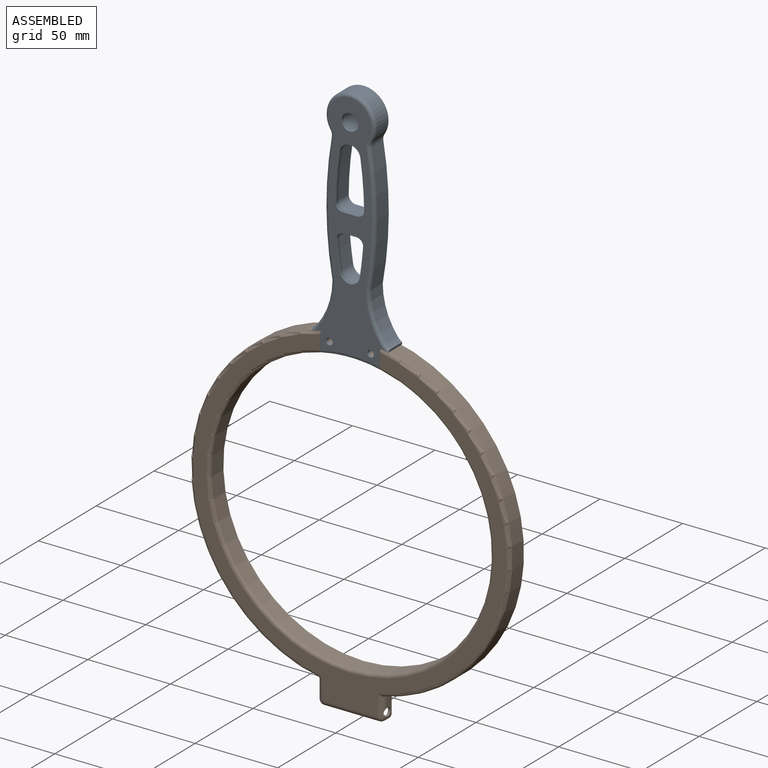
[diagram: assembled view]
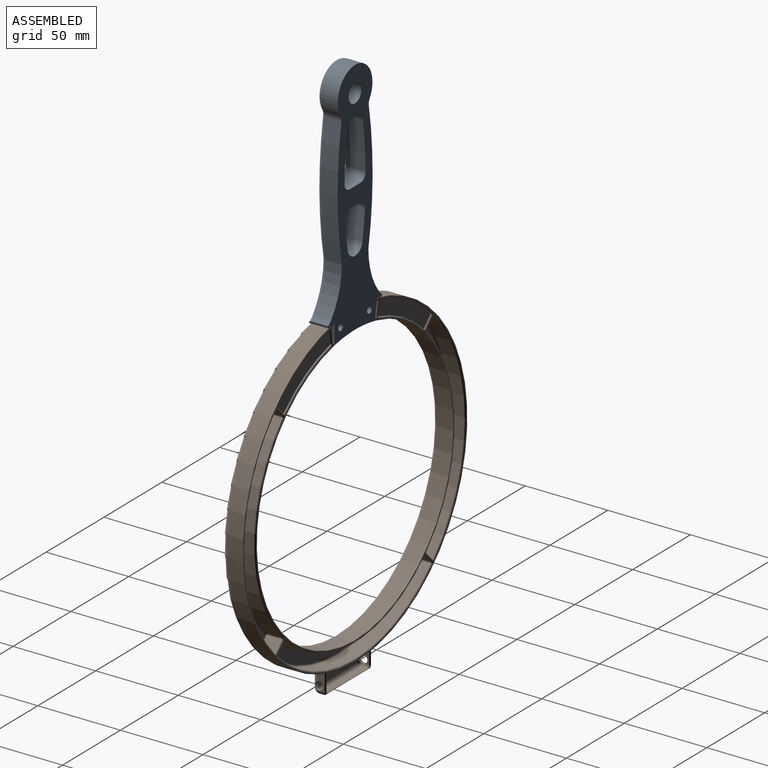
[diagram: assembled view, second angle]
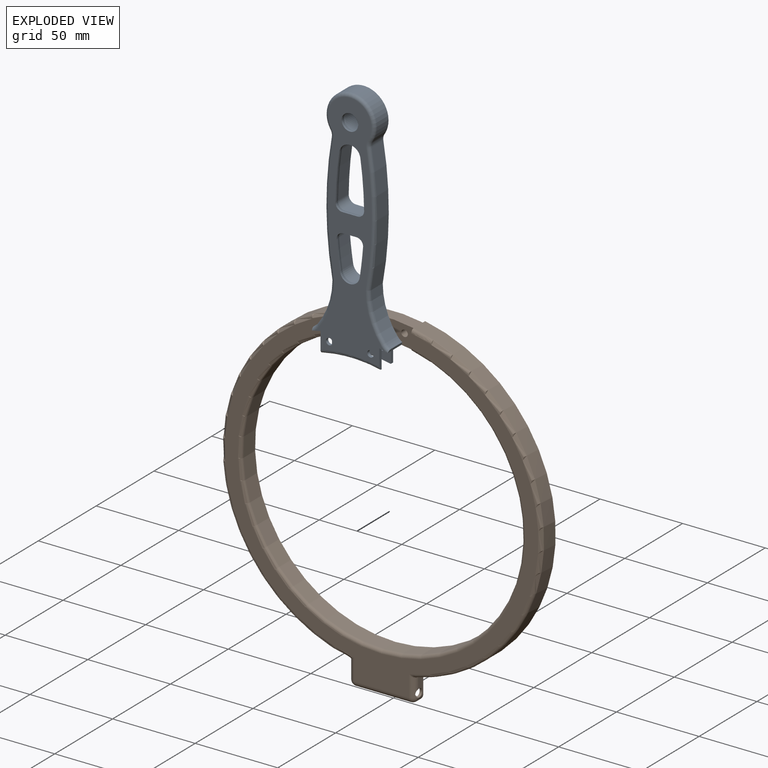
[diagram: exploded view]
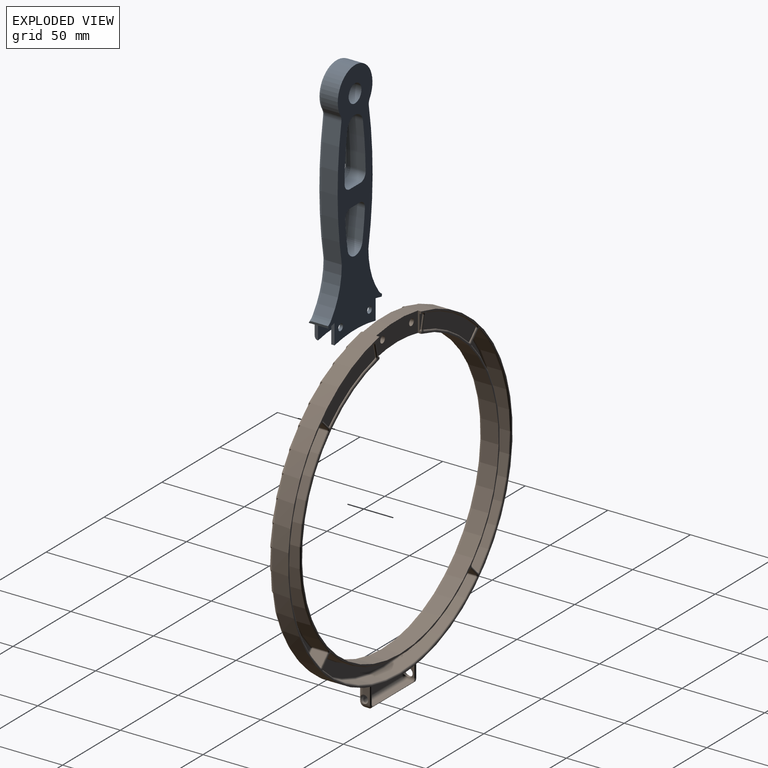
[diagram: exploded view, second angle]
ASSEMBLY  parts=2 mates=2
PART A: 87 faces, bbox 47.3x147.9x12 mm
  f0: cylinder r=97mm len=45.93mm, axis (0,0,1), area 413.1mm2, adj f1,f11,f12,f13,f27,f35,f75,f76
  f1: plane 11.92x1.46mm, normal (0.97,0.24,0), area 17.1mm2, adj f0,f2,f13,f35
  f2: cylinder r=10mm len=10mm, axis (0,0,1), area 38.8mm2, adj f1,f3,f13,f35
  f3: cylinder r=43.84mm len=26.55mm, axis (0,0,1), area 285.2mm2, adj f2,f4,f13,f34
  f4: cylinder r=223.59mm len=78.29mm, axis (0,0,1), area 786.9mm2, adj f3,f5,f13,f33
  f5: cylinder r=5mm len=10mm, axis (0,0,1), area 37.3mm2, adj f4,f6,f13,f32
  f6: cylinder r=15mm len=30mm, axis (0,0,1), area 643.7mm2, adj f5,f7,f13,f31
  f7: cylinder r=5mm len=10mm, axis (0,0,1), area 37.3mm2, adj f6,f8,f13,f30
  f8: cylinder r=223.59mm len=78.26mm, axis (0,0,1), area 786.7mm2, adj f7,f9,f13,f29
  f9: cylinder r=43.84mm len=26.58mm, axis (0,0,1), area 285.5mm2, adj f8,f10,f13,f28
  f10: cylinder r=10mm len=10mm, axis (0,0,1), area 38.7mm2, adj f9,f11,f13,f27
  f11: plane 11.92x1.46mm, normal (-0.97,0.24,0), area 17.1mm2, adj f0,f10,f13,f27
  f12: plane 142.67x42.64mm, normal (0,0,-1), area 2472mm2, adj f0,f14,f15,f16,f17,f18,f19,f20
  f13: plane 146.71x46.65mm, normal (0,0,1), area 3026.5mm2, adj f0,f1,f2,f3,f4,f5,f6,f7
  f14: cylinder r=5mm len=10mm, axis (0,0,1), area 31.4mm2, adj f12,f36
  f15: cylinder r=4mm len=4.31mm, axis (0,0,1), area 6.6mm2, adj f12,f16,f20,f45
  f16: plane 8x1mm, normal (0,1,0), area 8mm2, adj f12,f15,f17,f43
  f17: cylinder r=4mm len=4.31mm, axis (0,0,1), area 6.6mm2, adj f12,f16,f18,f44
  f18: cylinder r=217.09mm len=17.28mm, axis (0,0,1), area 17.4mm2, adj f12,f17,f19,f46
  f19: cylinder r=6.02mm len=11.9mm, axis (0,0,1), area 17mm2, adj f12,f18,f20,f48
  f20: cylinder r=217.09mm len=17.28mm, axis (0,0,1), area 17.4mm2, adj f12,f15,f19,f47
  f21: cylinder r=4mm len=4.06mm, axis (0,0,1), area 6.3mm2, adj f12,f22,f26,f39
  f22: cylinder r=217.09mm len=28.44mm, axis (0,0,1), area 28.6mm2, adj f12,f21,f23,f37
  f23: cylinder r=6.41mm len=12.68mm, axis (0,0,1), area 18.3mm2, adj f12,f22,f24,f38
  f24: cylinder r=217.09mm len=28.44mm, axis (0,0,1), area 28.6mm2, adj f12,f23,f25,f40
  f25: cylinder r=4mm len=4.06mm, axis (0,0,1), area 6.3mm2, adj f12,f24,f26,f42
  f26: plane 9.23x1mm, normal (0,-1,0), area 9.2mm2, adj f12,f21,f25,f41
  f27: torus R=12mm, axis (0,0,-1), area 13.2mm2, adj f0,f10,f11,f12,f28
  f28: torus R=45.84mm, axis (0,0,-1), area 91.4mm2, adj f9,f12,f27,f29
  f29: torus R=221.59mm, axis (0,0,-1), area 246.5mm2, adj f8,f12,f28,f30
  f30: torus R=7mm, axis (0,0,-1), area 13.4mm2, adj f7,f12,f29,f31
  f31: torus R=13mm, axis (0,0,-1), area 192.4mm2, adj f6,f12,f30,f32
  f32: torus R=7mm, axis (0,0,-1), area 13.4mm2, adj f5,f12,f31,f33
  f33: torus R=221.59mm, axis (0,0,-1), area 246.6mm2, adj f4,f12,f32,f34
  f34: torus R=45.84mm, axis (0,0,-1), area 91.3mm2, adj f3,f12,f33,f35
  f35: torus R=12mm, axis (0,0,-1), area 13.2mm2, adj f0,f1,f2,f12,f34
  f36: torus R=5.5mm, axis (0,0,-1), area 8.5mm2, adj f14,f74
  f37: torus R=217.59mm, axis (0,0,-1), area 7.7mm2, adj f22,f38,f39,f68
  f38: torus R=6.91mm, axis (0,0,-1), area 5mm2, adj f23,f37,f40,f69
  f39: torus R=4.5mm, axis (0,0,-1), area 1.7mm2, adj f21,f37,f41,f70
  f40: torus R=217.59mm, axis (0,0,-1), area 7.7mm2, adj f24,f38,f42,f71
  f41: cylinder r=0.5mm len=9.23mm, axis (1,0,0), area 2.5mm2, adj f26,f39,f42,f72
  f42: torus R=4.5mm, axis (0,0,-1), area 1.7mm2, adj f25,f40,f41,f73
  f43: cylinder r=0.5mm len=8mm, axis (-1,0,0), area 2.2mm2, adj f16,f44,f45,f60
  f44: torus R=4.5mm, axis (0,0,-1), area 1.8mm2, adj f17,f43,f46,f59
  f45: torus R=4.5mm, axis (0,0,-1), area 1.8mm2, adj f15,f43,f47,f58
  f46: torus R=217.59mm, axis (0,0,-1), area 4.7mm2, adj f18,f44,f48,f57
  f47: torus R=217.59mm, axis (0,0,-1), area 4.7mm2, adj f20,f45,f48,f56
  f48: torus R=6.52mm, axis (0,0,-1), area 4.6mm2, adj f19,f46,f47,f55
  f49: cylinder r=4.5mm len=9.2mm, axis (0,0,-1), area 68.2mm2, adj f13,f50,f54,f59
  f50: cylinder r=217.59mm len=17.32mm, axis (0,0,-1), area 160.4mm2, adj f13,f49,f51,f57
  f51: cylinder r=6.52mm len=12.89mm, axis (0,0,-1), area 169.6mm2, adj f13,f50,f52,f55
  f52: cylinder r=217.59mm len=17.32mm, axis (0,0,-1), area 160.4mm2, adj f13,f51,f53,f56
  f53: cylinder r=4.5mm len=9.2mm, axis (0,0,-1), area 68.2mm2, adj f13,f52,f54,f58
  f54: plane 9.2x8mm, normal (0,1,0), area 73.6mm2, adj f13,f49,f53,f60
  f55: cone r=6.52mm half-angle=15.5deg, axis (0,0,1), area 28.6mm2, adj f48,f51,f56,f57
  f56: cone r=217.59mm half-angle=15.5deg, axis (0,0,1), area 27.9mm2, adj f47,f52,f55,f58
  f57: cone r=217.59mm half-angle=15.5deg, axis (0,0,1), area 27.9mm2, adj f46,f50,f55,f59
  f58: cone r=4.5mm half-angle=15.5deg, axis (0,0,1), area 11.3mm2, adj f45,f53,f56,f60
  f59: cone r=4.5mm half-angle=15.5deg, axis (0,0,1), area 11.3mm2, adj f44,f49,f57,f60
  f60: plane 8x1.55mm, normal (0,0.96,0.27), area 12.8mm2, adj f43,f54,f58,f59
  f61: cylinder r=6.91mm len=13.66mm, axis (0,0,-1), area 181mm2, adj f13,f62,f67,f69
  f62: cylinder r=217.59mm len=28.51mm, axis (0,0,-1), area 263.2mm2, adj f13,f61,f63,f71
  f63: cylinder r=4.5mm len=9.2mm, axis (0,0,-1), area 65.6mm2, adj f13,f62,f64,f73
  f64: plane 9.23x9.2mm, normal (0,-1,0), area 84.9mm2, adj f13,f63,f65,f72
  f65: cylinder r=4.5mm len=9.2mm, axis (0,0,-1), area 65.6mm2, adj f13,f64,f67,f70
  f66: cylinder r=5.5mm len=11mm, axis (0,0,-1), area 317.8mm2, adj f13,f74
  f67: cylinder r=217.59mm len=28.51mm, axis (0,0,-1), area 263.2mm2, adj f13,f61,f65,f68
  f68: cone r=217.59mm half-angle=15.5deg, axis (0,0,1), area 45.8mm2, adj f37,f67,f69,f70
  f69: cone r=6.91mm half-angle=15.5deg, axis (0,0,1), area 30.6mm2, adj f38,f61,f68,f71
  f70: cone r=4.5mm half-angle=15.5deg, axis (0,0,1), area 10.9mm2, adj f39,f65,f68,f72
  f71: cone r=217.59mm half-angle=15.5deg, axis (0,0,1), area 45.8mm2, adj f40,f62,f69,f73
  f72: plane 9.23x1.55mm, normal (0,-0.96,0.27), area 14.8mm2, adj f41,f64,f70,f73
  f73: cone r=4.5mm half-angle=15.5deg, axis (0,0,1), area 10.9mm2, adj f42,f63,f71,f72
  f74: cone r=5.5mm half-angle=15.5deg, axis (0,0,1), area 53.3mm2, adj f36,f66
  f75: plane 12.24x2mm, normal (1,0,0), area 23.6mm2, adj f0,f12,f77,f82
  f76: plane 12.24x2mm, normal (-1,0,0), area 23.6mm2, adj f0,f12,f77,f82
  f77: plane 35.6x13.89mm, normal (0,0,1), area 404.9mm2, adj f0,f75,f76,f82,f85,f86
  f78: cylinder r=85mm len=35.6mm, axis (0,0,1), area 71.7mm2, adj f13,f79,f80,f81
  f79: plane 12.24x2mm, normal (-1,0,0), area 24.5mm2, adj f0,f13,f78,f81
  f80: plane 12.24x2mm, normal (1,0,0), area 24.5mm2, adj f0,f13,f78,f81
  f81: plane 35.6x13.89mm, normal (0,0,-1), area 404.9mm2, adj f0,f78,f79,f80,f83,f84
  f82: torus R=87mm, axis (0,0,-1), area 112.7mm2, adj f12,f75,f76,f77
  f83: cylinder r=2mm len=4mm, axis (0,0,1), area 25.1mm2, adj f13,f81
  f84: cylinder r=2mm len=4mm, axis (0,0,1), area 25.1mm2, adj f13,f81
  f85: cylinder r=2mm len=4mm, axis (0,0,1), area 25.1mm2, adj f12,f77
  f86: cylinder r=2mm len=4mm, axis (0,0,1), area 25.1mm2, adj f12,f77
PART B: 201 faces, bbox 210.2x12.2x213.3 mm
  f0: torus R=87mm, axis (0,1,0), area 1578.6mm2, adj f43,f45,f199,f200
  f1: torus R=95mm, axis (0,1,0), area 834.9mm2, adj f31,f45,f167,f199
  f2: cylinder r=2mm len=8mm, axis (0,1,0), area 100.5mm2, adj f197,f198
  f3: cylinder r=2mm len=8mm, axis (0,1,0), area 100.5mm2, adj f197,f198
  f4: cylinder r=95.5mm len=1.96mm, axis (0,1,0), area 0.4mm2, adj f7,f8,f136,f195
  f5: cylinder r=0.8mm len=0.9mm, axis (0,1,0), area 0.2mm2, adj f6,f8,f18,f195
  f6: torus R=1.6mm, axis (0,-1,0), area 2mm2, adj f5,f44,f123,f137,f195
  f7: torus R=96.3mm, axis (0,-1,0), area 2.6mm2, adj f4,f29,f143,f195
  f8: plane 9.19x2.59mm, normal (0,1,0), area 15.7mm2, adj f4,f5,f18,f136,f195
  f9: cylinder r=86.5mm len=39.12mm, axis (0,1,0), area 9mm2, adj f120,f128,f129,f194
  f10: cylinder r=95.5mm len=43.41mm, axis (0,1,0), area 10mm2, adj f127,f139,f140,f194
  f11: plane 5.23x5.23mm, normal (0.71,0,0.71), area 1.5mm2, adj f120,f126,f127,f194
  f12: plane 7.21x1.67mm, normal (-0.97,0,-0.22), area 1.5mm2, adj f128,f140,f141,f194
  f13: cylinder r=86.5mm len=39.12mm, axis (0,1,0), area 9mm2, adj f104,f113,f114,f193
  f14: plane 5.23x5.23mm, normal (-0.71,0,0.71), area 1.5mm2, adj f104,f115,f116,f193
  f15: plane 7.21x1.67mm, normal (0.97,0,-0.22), area 1.5mm2, adj f114,f130,f131,f193
  f16: cylinder r=95.5mm len=1.96mm, axis (0,1,0), area 0.4mm2, adj f146,f147,f192,f196
  f17: plane 7.21x1.67mm, normal (0.97,0,0.22), area 1.5mm2, adj f135,f145,f146,f192
  f18: plane 7.21x1.67mm, normal (-0.97,0,0.22), area 1.5mm2, adj f5,f8,f136,f137
  f19: cylinder r=2mm len=3.8mm, axis (0,-1,0), area 11.2mm2, adj f20,f32,f159,f164,f168,f191
  f20: plane 33x3.77mm, normal (0,0,1), area 124.4mm2, adj f19,f21,f157,f190
  f21: cylinder r=2mm len=3.8mm, axis (0,-1,0), area 11.2mm2, adj f20,f33,f156,f165,f181,f189
  f22: cylinder r=3.5mm len=3.8mm, axis (0,-1,0), area 16.2mm2, adj f23,f53,f155,f165,f166,f179
  f23: plane 33x1mm, normal (0,0,-1), area 33mm2, adj f22,f24,f153,f166
  f24: cylinder r=3.5mm len=3.8mm, axis (0,-1,0), area 16.2mm2, adj f23,f52,f152,f164,f166,f170
  f25: plane 12.53x0.79mm, normal (0,1,0), area 1.3mm2, adj f166,f168,f170,f171,f173,f174,f177
  f26: plane 12.53x0.79mm, normal (0,1,0), area 1.3mm2, adj f166,f179,f181,f182,f184,f186,f187
  f27: cylinder r=2mm len=8.32mm, axis (0,0,1), area 20mm2, adj f33,f54,f160,f165
  f28: cylinder r=2mm len=2mm, axis (0,0,1), area 2.1mm2, adj f54,f159,f164
  f29: plane 194x192.32mm, normal (0,1,0), area 405.7mm2, adj f7,f31,f87,f88,f97,f98,f109,f110
  f30: cylinder r=95.5mm len=43.41mm, axis (0,1,0), area 10mm2, adj f115,f131,f132,f193
  f31: cylinder r=97mm len=194mm, axis (0,1,0), area 5930.7mm2, adj f1,f29,f55,f149,f150,f162,f169,f172
  f32: plane 10.32x3.8mm, normal (1,0,0), area 27.6mm2, adj f19,f150,f161,f164,f171
  f33: plane 10.32x3.8mm, normal (-1,0,0), area 27.6mm2, adj f21,f27,f149,f165,f184
  f34: cylinder r=86.5mm len=120.14mm, axis (0,1,0), area 1181.9mm2, adj f78,f90,f103,f105
  f35: plane 131.72x31.88mm, normal (0,1,0), area 1034.8mm2, adj f77,f78,f101,f102
  f36: cylinder r=95.5mm len=132.83mm, axis (0,1,0), area 1307.3mm2, adj f100,f101,f118,f119
  f37: cylinder r=86.5mm len=120.14mm, axis (0,1,0), area 1181.9mm2, adj f61,f69,f81,f82
  f38: plane 131.72x31.88mm, normal (0,1,0), area 1034.8mm2, adj f61,f62,f83,f84
  f39: cylinder r=95.5mm len=132.83mm, axis (0,1,0), area 1307.3mm2, adj f84,f85,f108,f109
  f40: cylinder r=86.5mm len=120.14mm, axis (0,1,0), area 1181.9mm2, adj f57,f58,f68,f72
  f41: plane 131.72x31.88mm, normal (0,1,0), area 1034.8mm2, adj f57,f59,f66,f67
  f42: cylinder r=95.5mm len=132.83mm, axis (0,1,0), area 1307.3mm2, adj f66,f75,f88,f89
  f43: cylinder r=85mm len=170mm, axis (0,1,0), area 5268.2mm2, adj f0,f44,f195,f196,f197,f198
  f44: plane 171.4x170.36mm, normal (0,1,0), area 355.6mm2, adj f6,f43,f64,f72,f73,f80,f81,f94
  f45: plane 199.78x190mm, normal (0,-1,0), area 4679.6mm2, adj f0,f1,f55,f151,f153,f154,f199,f200
  f46: plane 8.9x5.23mm, normal (-0.71,0,0.71), area 65.9mm2, adj f77,f90,f99,f100
  f47: plane 8.9x5.23mm, normal (0.71,0,-0.71), area 65.9mm2, adj f67,f68,f89,f93
  f48: plane 8.9x5.23mm, normal (-0.71,0,-0.71), area 65.9mm2, adj f58,f59,f74,f75
  f49: plane 8.9x5.23mm, normal (0.71,0,0.71), area 65.9mm2, adj f62,f69,f85,f86
  f50: plane 8.9x5.23mm, normal (0.71,0,-0.71), area 65.9mm2, adj f82,f83,f107,f108
  f51: plane 8.9x5.23mm, normal (-0.71,0,-0.71), area 65.9mm2, adj f102,f103,f119,f121
  f52: plane 11.02x3.8mm, normal (-1,0,0), area 30.3mm2, adj f24,f151,f164,f172,f173
  f53: plane 11.02x3.8mm, normal (1,0,0), area 30.3mm2, adj f22,f154,f165,f182,f183
  f54: plane 33x8.88mm, normal (0,1,0), area 262.7mm2, adj f27,f28,f157,f158,f161,f162
  f55: torus R=95mm, axis (0,1,0), area 834.9mm2, adj f31,f45,f178,f200
  f56: sphere r=0.8mm, area 1mm2, adj f57,f58,f59
  f57: torus R=87.3mm, axis (0,-1,0), area 167.4mm2, adj f40,f41,f56,f63
  f58: cylinder r=0.8mm len=8.9mm, axis (0,1,0), area 11.1mm2, adj f40,f48,f56,f64
  f59: cylinder r=0.8mm len=5.8mm, axis (0.71,0,-0.71), area 9.3mm2, adj f41,f48,f56,f65
  f60: sphere r=0.8mm, area 0.7mm2, adj f61,f62,f69
  f61: torus R=87.3mm, axis (0,-1,0), area 167.4mm2, adj f37,f38,f60,f70
  f62: cylinder r=0.8mm len=5.8mm, axis (-0.71,0,0.71), area 9.3mm2, adj f38,f49,f60,f71
  f63: sphere r=0.8mm, area 1.2mm2, adj f57,f67,f68
  f64: torus R=1.6mm, axis (0,-1,0), area 2.1mm2, adj f44,f58,f72,f73,f74
  f65: sphere r=0.8mm, area 1mm2, adj f59,f66,f75
  f66: torus R=94.7mm, axis (0,-1,0), area 184mm2, adj f41,f42,f65,f79
  f67: cylinder r=0.8mm len=5.8mm, axis (0.71,0,0.71), area 9.3mm2, adj f41,f47,f63,f79
  f68: cylinder r=0.8mm len=8.9mm, axis (0,1,0), area 11.1mm2, adj f40,f47,f63,f80
  f69: cylinder r=0.8mm len=8.9mm, axis (0,1,0), area 11.1mm2, adj f37,f49,f60,f73
  f70: sphere r=0.8mm, area 0.7mm2, adj f61,f82,f83
  f71: sphere r=0.8mm, area 1mm2, adj f62,f84,f85
  f72: torus R=85.7mm, axis (0,-1,0), area 166.3mm2, adj f40,f44,f64,f80
  f73: torus R=1.6mm, axis (0,-1,0), area 2.1mm2, adj f44,f64,f69,f81,f86
  f74: cylinder r=0.8mm len=5.76mm, axis (0.71,0,-0.71), area 8.9mm2, adj f48,f64,f86,f87
  f75: cylinder r=0.8mm len=8.9mm, axis (0,1,0), area 11.3mm2, adj f42,f48,f65,f87
  f76: sphere r=0.8mm, area 0.9mm2, adj f77,f78,f90
  f77: cylinder r=0.8mm len=5.8mm, axis (-0.71,0,-0.71), area 9.3mm2, adj f35,f46,f76,f91
  f78: torus R=87.3mm, axis (0,-1,0), area 167.4mm2, adj f34,f35,f76,f92
  f79: sphere r=0.8mm, area 0.8mm2, adj f66,f67,f89
  f80: torus R=1.6mm, axis (0,-1,0), area 2.1mm2, adj f44,f68,f72,f93,f94
  f81: torus R=85.7mm, axis (0,-1,0), area 166.3mm2, adj f37,f44,f73,f95
  f82: cylinder r=0.8mm len=8.9mm, axis (0,1,0), area 11.1mm2, adj f37,f50,f70,f95
  f83: cylinder r=0.8mm len=5.8mm, axis (0.71,0,0.71), area 9.3mm2, adj f38,f50,f70,f96
  f84: torus R=94.7mm, axis (0,-1,0), area 184mm2, adj f38,f39,f71,f96
  f85: cylinder r=0.8mm len=8.9mm, axis (0,1,0), area 11.3mm2, adj f39,f49,f71,f97
  f86: cylinder r=0.8mm len=5.76mm, axis (-0.71,0,0.71), area 8.9mm2, adj f49,f73,f74,f97
  f87: torus R=1.6mm, axis (0,-1,0), area 2.2mm2, adj f29,f74,f75,f88,f97
  f88: torus R=96.3mm, axis (0,-1,0), area 185.1mm2, adj f29,f42,f87,f98
  f89: cylinder r=0.8mm len=8.9mm, axis (0,1,0), area 11.3mm2, adj f42,f47,f79,f98
  f90: cylinder r=0.8mm len=8.9mm, axis (0,1,0), area 11.1mm2, adj f34,f46,f76,f94
  f91: sphere r=0.8mm, area 1.3mm2, adj f77,f100,f101
  f92: sphere r=0.8mm, area 1mm2, adj f78,f102,f103
  f93: cylinder r=0.8mm len=5.76mm, axis (0.71,0,0.71), area 8.9mm2, adj f47,f80,f98,f99
  f94: torus R=1.6mm, axis (0,-1,0), area 2.1mm2, adj f44,f80,f90,f99,f105
  f95: torus R=1.6mm, axis (0,-1,0), area 2.1mm2, adj f44,f81,f82,f106,f107
  f96: sphere r=0.8mm, area 1.2mm2, adj f83,f84,f108
  f97: torus R=1.6mm, axis (0,-1,0), area 2.2mm2, adj f29,f85,f86,f87,f109
  f98: torus R=1.6mm, axis (0,-1,0), area 2.2mm2, adj f29,f88,f89,f93,f110
  f99: cylinder r=0.8mm len=5.76mm, axis (-0.71,0,-0.71), area 8.9mm2, adj f46,f93,f94,f110
  f100: cylinder r=0.8mm len=8.9mm, axis (0,1,0), area 11.3mm2, adj f36,f46,f91,f110
  f101: torus R=94.7mm, axis (0,-1,0), area 184mm2, adj f35,f36,f91,f111
  f102: cylinder r=0.8mm len=5.8mm, axis (0.71,0,-0.71), area 9.3mm2, adj f35,f51,f92,f111
  f103: cylinder r=0.8mm len=8.9mm, axis (0,1,0), area 11.1mm2, adj f34,f51,f92,f112
  f104: cylinder r=0.8mm len=1.12mm, axis (0,1,0), area 0.2mm2, adj f13,f14,f106,f193
  f105: torus R=85.7mm, axis (0,-1,0), area 166.3mm2, adj f34,f44,f94,f112
  f106: torus R=1.6mm, axis (0,-1,0), area 2.1mm2, adj f44,f95,f104,f113,f116
  f107: cylinder r=0.8mm len=5.76mm, axis (0.71,0,0.71), area 8.9mm2, adj f50,f95,f116,f117
  f108: cylinder r=0.8mm len=8.9mm, axis (0,1,0), area 11.3mm2, adj f39,f50,f96,f117
  f109: torus R=96.3mm, axis (0,-1,0), area 185.1mm2, adj f29,f39,f97,f117
  f110: torus R=1.6mm, axis (0,-1,0), area 2.2mm2, adj f29,f98,f99,f100,f118
  f111: sphere r=0.8mm, area 0.9mm2, adj f101,f102,f119
  f112: torus R=1.6mm, axis (0,-1,0), area 2.1mm2, adj f44,f103,f105,f121,f122
  f113: torus R=85.7mm, axis (0,-1,0), area 56.7mm2, adj f13,f44,f106,f123
  f114: cylinder r=0.8mm len=0.96mm, axis (0,1,0), area 0.2mm2, adj f13,f15,f123,f193
  f115: cylinder r=0.8mm len=1.14mm, axis (0,1,0), area 0.3mm2, adj f14,f30,f124,f193
  f116: cylinder r=0.8mm len=5.76mm, axis (-0.71,0,-0.71), area 8.9mm2, adj f14,f106,f107,f124
  f117: torus R=1.6mm, axis (0,-1,0), area 2.2mm2, adj f29,f107,f108,f109,f124
  f118: torus R=96.3mm, axis (0,-1,0), area 185.1mm2, adj f29,f36,f110,f125
  f119: cylinder r=0.8mm len=8.9mm, axis (0,1,0), area 11.3mm2, adj f36,f51,f111,f125
  f120: cylinder r=0.8mm len=1.12mm, axis (0,1,0), area 0.2mm2, adj f9,f11,f122,f194
  f121: cylinder r=0.8mm len=5.76mm, axis (0.71,0,-0.71), area 8.9mm2, adj f51,f112,f125,f126
  f122: torus R=1.6mm, axis (0,-1,0), area 2.1mm2, adj f44,f112,f120,f126,f129
  f123: torus R=1.6mm, axis (0,-1,0), area 2.1mm2, adj f6,f44,f113,f114,f130
  f124: torus R=1.6mm, axis (0,-1,0), area 2.2mm2, adj f29,f115,f116,f117,f132
  f125: torus R=1.6mm, axis (0,-1,0), area 2.2mm2, adj f29,f118,f119,f121,f133
  f126: cylinder r=0.8mm len=5.76mm, axis (-0.71,0,0.71), area 8.9mm2, adj f11,f121,f122,f133
  f127: cylinder r=0.8mm len=1.14mm, axis (0,1,0), area 0.3mm2, adj f10,f11,f133,f194
  f128: cylinder r=0.8mm len=0.96mm, axis (0,1,0), area 0.2mm2, adj f9,f12,f134,f194
  f129: torus R=85.7mm, axis (0,-1,0), area 56.7mm2, adj f9,f44,f122,f134
  f130: cylinder r=0.8mm len=7.38mm, axis (0.22,0,0.97), area 8.9mm2, adj f15,f123,f137,f138
  f131: cylinder r=0.8mm len=0.97mm, axis (0,1,0), area 0.3mm2, adj f15,f30,f138,f193
  f132: torus R=96.3mm, axis (0,-1,0), area 63.3mm2, adj f29,f30,f124,f138
  f133: torus R=1.6mm, axis (0,-1,0), area 2.2mm2, adj f29,f125,f126,f127,f139
  f134: torus R=1.6mm, axis (0,-1,0), area 2.1mm2, adj f44,f128,f129,f141,f142
  f135: cylinder r=0.8mm len=0.9mm, axis (0,1,0), area 0.2mm2, adj f17,f142,f192,f196
  f136: cylinder r=0.8mm len=0.96mm, axis (0,1,0), area 0.3mm2, adj f4,f8,f18,f143
  f137: cylinder r=0.8mm len=7.38mm, axis (-0.22,0,-0.97), area 8.9mm2, adj f6,f18,f130,f143
  f138: torus R=1.6mm, axis (0,-1,0), area 2.2mm2, adj f29,f130,f131,f132,f143
  f139: torus R=96.3mm, axis (0,-1,0), area 63.3mm2, adj f10,f29,f133,f144
  f140: cylinder r=0.8mm len=0.97mm, axis (0,1,0), area 0.3mm2, adj f10,f12,f144,f194
  f141: cylinder r=0.8mm len=7.38mm, axis (0.22,0,-0.97), area 8.9mm2, adj f12,f134,f144,f145
  f142: torus R=1.6mm, axis (0,-1,0), area 2mm2, adj f44,f134,f135,f145,f196
  f143: torus R=1.6mm, axis (0,-1,0), area 2.2mm2, adj f7,f29,f136,f137,f138
  f144: torus R=1.6mm, axis (0,-1,0), area 2.2mm2, adj f29,f139,f140,f141,f148
  f145: cylinder r=0.8mm len=7.38mm, axis (-0.22,0,0.97), area 8.9mm2, adj f17,f141,f142,f148
  f146: cylinder r=0.8mm len=0.96mm, axis (0,1,0), area 0.3mm2, adj f16,f17,f148,f192
  f147: torus R=96.3mm, axis (0,-1,0), area 2.6mm2, adj f16,f29,f148,f196
  f148: torus R=1.6mm, axis (0,-1,0), area 2.2mm2, adj f29,f144,f145,f146,f147
  f149: cylinder r=0.8mm len=3.8mm, axis (0,1,0), area 5.3mm2, adj f31,f33,f160,f186
  f150: cylinder r=0.8mm len=3.8mm, axis (0,1,0), area 5.3mm2, adj f31,f32,f163,f174
  f151: cylinder r=3.5mm len=12.94mm, axis (0,0,1), area 57.1mm2, adj f45,f52,f152,f164,f167,f169
  f152: sphere r=3.5mm, area 19mm2, adj f24,f151,f153,f164
  f153: cylinder r=3.5mm len=33mm, axis (-1,0,0), area 181.4mm2, adj f23,f45,f152,f155
  f154: cylinder r=3.5mm len=12.94mm, axis (0,0,-1), area 57.1mm2, adj f45,f53,f155,f165,f178,f180
  f155: sphere r=3.5mm, area 19mm2, adj f22,f153,f154,f165
  f156: sphere r=2mm, area 6mm2, adj f21,f157,f158,f165
  f157: cylinder r=2mm len=33mm, axis (-1,0,0), area 103.7mm2, adj f20,f54,f156,f159
  f158: cylinder r=2mm len=2mm, axis (0,0,1), area 2.1mm2, adj f54,f156,f165
  f159: sphere r=2mm, area 6mm2, adj f19,f28,f157,f164
  f160: bspline ~2.22x2mm, area 2.1mm2, adj f27,f149,f162
  f161: cylinder r=2mm len=8.32mm, axis (0,0,1), area 20mm2, adj f32,f54,f163,f164
  f162: torus R=99mm, axis (0,-1,0), area 107.3mm2, adj f31,f54,f160,f163
  f163: bspline ~2.22x2mm, area 2.1mm2, adj f150,f161,f162
  f164: cylinder r=2.5mm len=5mm, axis (1,0,0), area 29.3mm2, adj f19,f24,f28,f32,f52,f151,f152,f159
  f165: cylinder r=2.5mm len=5mm, axis (1,0,0), area 29.3mm2, adj f21,f22,f27,f33,f53,f154,f155,f156
  f166: cylinder r=5.52mm len=38.29mm, axis (1,0,0), area 116.1mm2, adj f22,f23,f24,f25,f26,f168,f170,f179
  f167: bspline ~3.95x2.71mm, area 1.6mm2, adj f1,f151,f169
  f168: torus R=2.7mm, axis (0,-1,0), area 2.6mm2, adj f19,f25,f166,f171,f191
  f169: bspline ~3.26x1.18mm, area 1.3mm2, adj f31,f151,f167,f172
  f170: torus R=2.8mm, axis (0,-1,0), area 2.4mm2, adj f24,f25,f166,f173
  f171: cylinder r=0.7mm len=10.32mm, axis (0,0,-1), area 11.3mm2, adj f25,f32,f168,f174
  f172: cylinder r=0.7mm len=3.8mm, axis (0,1,0), area 3.6mm2, adj f31,f52,f169,f175
  f173: cylinder r=0.7mm len=11.02mm, axis (0,0,1), area 12mm2, adj f25,f52,f170,f175
  f174: torus R=1.5mm, axis (0,-1,0), area 0.6mm2, adj f25,f150,f171,f176
  f175: bspline ~1.71x1.66mm, area 1.6mm2, adj f31,f172,f173,f177
  f176: bspline ~1.76x1.4mm, area 1.4mm2, adj f31,f174,f177
  f177: torus R=97.7mm, axis (0,-1,0), area 0.2mm2, adj f25,f31,f175,f176
  f178: bspline ~3.95x2.71mm, area 1.6mm2, adj f55,f154,f180
  f179: torus R=2.8mm, axis (0,-1,0), area 2.4mm2, adj f22,f26,f166,f182
  f180: bspline ~3.26x1.18mm, area 1.3mm2, adj f31,f154,f178,f183
  f181: torus R=2.7mm, axis (0,-1,0), area 2.6mm2, adj f21,f26,f166,f184,f189
  f182: cylinder r=0.7mm len=11.02mm, axis (0,0,-1), area 12mm2, adj f26,f53,f179,f185
  f183: cylinder r=0.7mm len=3.8mm, axis (0,1,0), area 3.6mm2, adj f31,f53,f180,f185
  f184: cylinder r=0.7mm len=10.32mm, axis (0,0,1), area 11.3mm2, adj f26,f33,f181,f186
  f185: bspline ~1.71x1.61mm, area 1.6mm2, adj f31,f182,f183,f187
  f186: torus R=1.5mm, axis (0,-1,0), area 0.6mm2, adj f26,f149,f184,f188
  f187: torus R=97.7mm, axis (0,-1,0), area 0.2mm2, adj f26,f31,f185,f188
  f188: bspline ~1.76x1.4mm, area 1.4mm2, adj f31,f186,f187
  f189: bspline ~1.87x0.93mm, area 0.4mm2, adj f21,f166,f181,f190
  f190: cylinder r=0.2mm len=33mm, axis (1,0,0), area 16.4mm2, adj f20,f166,f189,f191
  f191: bspline ~1.87x0.93mm, area 0.4mm2, adj f19,f166,f168,f190
  f192: plane 9.19x2.59mm, normal (0,1,0), area 15.7mm2, adj f16,f17,f135,f146,f196
  f193: plane 46.31x30.7mm, normal (0,1,0), area 443.4mm2, adj f13,f14,f15,f30,f104,f114,f115,f131
  f194: plane 46.31x30.7mm, normal (0,1,0), area 443.4mm2, adj f9,f10,f11,f12,f120,f127,f128,f140
  f195: plane 12.31x2.06mm, normal (-1,0,0), area 15mm2, adj f4,f5,f6,f7,f8,f29,f31,f43
  f196: plane 12.31x2.06mm, normal (1,0,0), area 15mm2, adj f16,f29,f31,f43,f44,f135,f142,f147
  f197: plane 36x13.93mm, normal (0,1,0), area 409.7mm2, adj f2,f3,f31,f43,f195,f196
  f198: plane 36x13.93mm, normal (0,-1,0), area 409.7mm2, adj f2,f3,f31,f43,f199,f200
  f199: plane 12.42x2.18mm, normal (1,0,0), area 22.7mm2, adj f0,f1,f45,f198
  f200: plane 12.42x2.18mm, normal (-1,0,0), area 22.7mm2, adj f0,f45,f55,f198
PLACE A rot(axis=(-1,0,0),90deg) t=(1.06,22.83,8.39)mm
PLACE B t=(1.07,9.24,6.84)mm
MATE cylindrical A.f83 <-> B.f3  axis (0,1,0) through (13.57,22.83,97.84)mm
MATE planar A.f12 <-> B.f45  axis (0,-1,0) through (-17.8,10.83,103.87)mm
